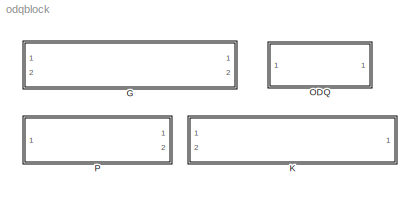
MODEL odqblock
KIND library
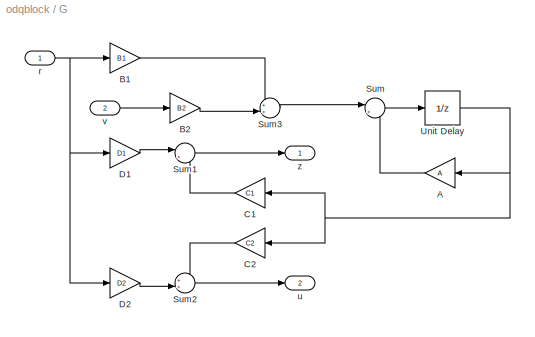
BLOCK [SubSystem] G
  FunctionWithSeparateData = off
  MaskCallbackString = ||||||||
  MaskDescription = x(k+1) = A*x(k) + B1*r(k) + B2*v(k)\n z(k)  = C1*x(k) + D1*r(k)\n u(k)  = C2*x(k) + D2*r(k)
  MaskDisplay = fprintf('%s\\n%s\\n%s',...\n    'x[k+1]=A*x[k]+B1*r[k]+B2*v[k]',...\n    'z[k]=C1*x[k]+D1*r[k]',...\n    'u[k]=C2*x[k]+D2*r[k]')\nport_label('input' ,1,'r')\nport_label('input' ,2,'v')\nport_label('output',1,'z')\nport_label('output',2,'u')\n
  MaskEnableString = on,on,on,on,on,on,on,on,on
  MaskHideContents = off
  MaskIconFrame = on
  MaskIconOpaque = on
  MaskIconRotate = none
  MaskIconUnits = autoscale
  MaskPortRotate = default
  MaskPromptString = A|B1|B2|C1|C2|D1|D2|Ts (Sampling Time)|Initial Conditions
  MaskStyleString = edit,edit,edit,edit,edit,edit,edit,edit,edit
  MaskToolTipString = on,on,on,on,on,on,on,on,on
  MaskTunableValueString = on,on,on,on,on,on,on,on,on
  MaskType = System G
  MaskValueString = 0|0|0|0|0|0|0|Ts|x0
  MaskVariables = A=@1;B1=@2;B2=@3;C1=@4;C2=@5;D1=@6;D2=@7;Ts=@8;x0=@9;
  MaskVisibilityString = on,on,on,on,on,on,on,on,on
  MinAlgLoopOccurrences = off
  Opaque = off
  Ports = [2, 2]
  PropExecContextOutsideSubsystem = off
  RTWSystemCode = Auto
  RequestExecContextInheritance = off
  SID = 1
BLOCK [Gain] G/A
  Gain = A
  Multiplication = Matrix(K*u)
  OutDataTypeStr = Inherit: Inherit via internal rule
  ParamDataTypeStr = Inherit: Inherit via internal rule
  SID = 4
  SampleTime = Ts
  SaturateOnIntegerOverflow = off
BLOCK [Gain] G/B1
  Gain = B1
  Multiplication = Matrix(K*u)
  OutDataTypeStr = Inherit: Inherit via internal rule
  ParamDataTypeStr = Inherit: Inherit via internal rule
  SID = 5
  SampleTime = Ts
  SaturateOnIntegerOverflow = off
BLOCK [Gain] G/B2
  Gain = B2
  Multiplication = Matrix(K*u)
  OutDataTypeStr = Inherit: Inherit via internal rule
  ParamDataTypeStr = Inherit: Inherit via internal rule
  SID = 6
  SampleTime = Ts
  SaturateOnIntegerOverflow = off
BLOCK [Gain] G/C1
  Gain = C1
  Multiplication = Matrix(K*u)
  OutDataTypeStr = Inherit: Inherit via internal rule
  ParamDataTypeStr = Inherit: Inherit via internal rule
  SID = 7
  SampleTime = Ts
  SaturateOnIntegerOverflow = off
BLOCK [Gain] G/C2
  Gain = C2
  Multiplication = Matrix(K*u)
  OutDataTypeStr = Inherit: Inherit via internal rule
  ParamDataTypeStr = Inherit: Inherit via internal rule
  SID = 8
  SampleTime = Ts
  SaturateOnIntegerOverflow = off
BLOCK [Gain] G/D1
  Gain = D1
  Multiplication = Matrix(K*u)
  OutDataTypeStr = Inherit: Inherit via internal rule
  ParamDataTypeStr = Inherit: Inherit via internal rule
  SID = 9
  SampleTime = Ts
  SaturateOnIntegerOverflow = off
BLOCK [Gain] G/D2
  Gain = D2
  Multiplication = Matrix(K*u)
  OutDataTypeStr = Inherit: Inherit via internal rule
  ParamDataTypeStr = Inherit: Inherit via internal rule
  SID = 10
  SampleTime = Ts
  SaturateOnIntegerOverflow = off
BLOCK [Sum] G/Sum
  IconShape = round
  InputSameDT = off
  Inputs = |++
  OutDataTypeStr = Inherit: Inherit via internal rule
  Ports = [2, 1]
  SID = 11
  SaturateOnIntegerOverflow = off
BLOCK [Sum] G/Sum1
  IconShape = round
  InputSameDT = off
  Inputs = |++
  OutDataTypeStr = Inherit: Inherit via internal rule
  Ports = [2, 1]
  SID = 12
  SaturateOnIntegerOverflow = off
BLOCK [Sum] G/Sum2
  IconShape = round
  InputSameDT = off
  Inputs = ++|
  OutDataTypeStr = Inherit: Inherit via internal rule
  Ports = [2, 1]
  SID = 13
  SaturateOnIntegerOverflow = off
BLOCK [Sum] G/Sum3
  IconShape = round
  InputSameDT = off
  Inputs = ++|
  OutDataTypeStr = Inherit: Inherit via internal rule
  Ports = [2, 1]
  SID = 14
  SaturateOnIntegerOverflow = off
BLOCK [UnitDelay] G/Unit Delay
  SID = 15
  SampleTime = Ts
  X0 = x0
BLOCK [Inport] G/r
  IconDisplay = Port number
  SID = 2
BLOCK [Outport] G/u
  IconDisplay = Port number
  Port = 2
  SID = 17
BLOCK [Inport] G/v
  IconDisplay = Port number
  Port = 2
  SID = 3
BLOCK [Outport] G/z
  IconDisplay = Port number
  SID = 16
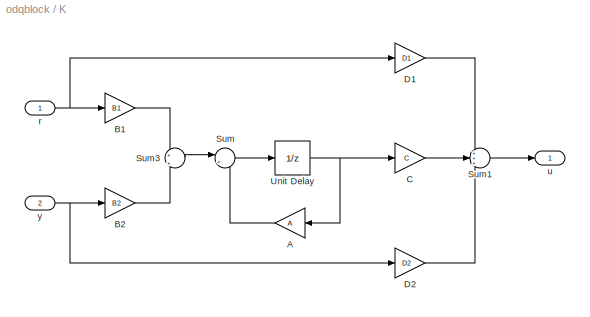
BLOCK [SubSystem] K
  FunctionWithSeparateData = off
  MaskCallbackString = |||||||
  MaskDescription = x(k+1) = A*x(k) + B1*r(k) + B2*y(k)\n u(k)  = C*x(k) + D1*r(k) + D2*y(k)
  MaskDisplay = fprintf('%s\\n%s','x[k+1]=A*x[k]+B1*r[k]+B2*y[k]',...\n    'u[k]=C*x[k]+D1*r[k]+D2*y[k]')\nport_label('input' ,1,'r')\nport_label('input' ,2,'y')\nport_label('output',1,'u')\n
  MaskEnableString = on,on,on,on,on,on,on,on
  MaskHideContents = off
  MaskIconFrame = on
  MaskIconOpaque = on
  MaskIconRotate = none
  MaskIconUnits = autoscale
  MaskPortRotate = default
  MaskPromptString = A|B1|B2|C|D1|D2|Ts (Sampling Time)|Initial Conditions
  MaskStyleString = edit,edit,edit,edit,edit,edit,edit,edit
  MaskToolTipString = on,on,on,on,on,on,on,on
  MaskTunableValueString = on,on,on,on,on,on,on,on
  MaskType = Controller K
  MaskValueString = 0|0|0|0|0|0|Ts|x0
  MaskVariables = A=@1;B1=@2;B2=@3;C=@4;D1=@5;D2=@6;Ts=@7;x0=@8;
  MaskVisibilityString = on,on,on,on,on,on,on,on
  MinAlgLoopOccurrences = off
  Opaque = off
  Ports = [2, 1]
  PropExecContextOutsideSubsystem = off
  RTWSystemCode = Auto
  RequestExecContextInheritance = off
  SID = 33
BLOCK [Gain] K/A
  Gain = A
  Multiplication = Matrix(K*u)
  OutDataTypeStr = Inherit: Inherit via internal rule
  ParamDataTypeStr = Inherit: Inherit via internal rule
  SID = 46
  SampleTime = Ts
  SaturateOnIntegerOverflow = off
BLOCK [Gain] K/B1
  Gain = B1
  Multiplication = Matrix(K*u)
  OutDataTypeStr = Inherit: Inherit via internal rule
  ParamDataTypeStr = Inherit: Inherit via internal rule
  SID = 47
  SampleTime = Ts
  SaturateOnIntegerOverflow = off
BLOCK [Gain] K/B2
  Gain = B2
  Multiplication = Matrix(K*u)
  OutDataTypeStr = Inherit: Inherit via internal rule
  ParamDataTypeStr = Inherit: Inherit via internal rule
  SID = 48
  SampleTime = Ts
  SaturateOnIntegerOverflow = off
BLOCK [Gain] K/C
  Gain = C
  Multiplication = Matrix(K*u)
  OutDataTypeStr = Inherit: Inherit via internal rule
  ParamDataTypeStr = Inherit: Inherit via internal rule
  SID = 49
  SampleTime = Ts
  SaturateOnIntegerOverflow = off
BLOCK [Gain] K/D1
  Gain = D1
  Multiplication = Matrix(K*u)
  OutDataTypeStr = Inherit: Inherit via internal rule
  ParamDataTypeStr = Inherit: Inherit via internal rule
  SID = 51
  SampleTime = Ts
  SaturateOnIntegerOverflow = off
BLOCK [Gain] K/D2
  Gain = D2
  Multiplication = Matrix(K*u)
  OutDataTypeStr = Inherit: Inherit via internal rule
  ParamDataTypeStr = Inherit: Inherit via internal rule
  SID = 52
  SampleTime = Ts
  SaturateOnIntegerOverflow = off
BLOCK [Sum] K/Sum
  IconShape = round
  InputSameDT = off
  Inputs = |++
  OutDataTypeStr = Inherit: Inherit via internal rule
  Ports = [2, 1]
  SID = 53
  SaturateOnIntegerOverflow = off
BLOCK [Sum] K/Sum1
  IconShape = round
  InputSameDT = off
  Inputs = +++
  OutDataTypeStr = Inherit: Inherit via internal rule
  Ports = [3, 1]
  SID = 54
  SaturateOnIntegerOverflow = off
BLOCK [Sum] K/Sum3
  IconShape = round
  InputSameDT = off
  Inputs = +|+
  OutDataTypeStr = Inherit: Inherit via internal rule
  Ports = [2, 1]
  SID = 56
  SaturateOnIntegerOverflow = off
BLOCK [UnitDelay] K/Unit Delay
  SID = 57
  SampleTime = Ts
  X0 = x0
BLOCK [Inport] K/r
  IconDisplay = Port number
  SID = 44
BLOCK [Outport] K/u
  IconDisplay = Port number
  SID = 58
BLOCK [Inport] K/y
  IconDisplay = Port number
  Port = 2
  SID = 45
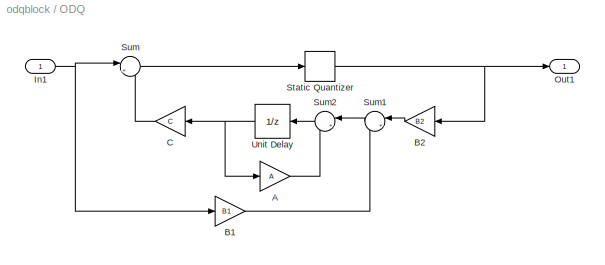
BLOCK [SubSystem] ODQ
  FunctionWithSeparateData = off
  MaskCallbackString = |||||
  MaskDescription = xi(k+1) = A*xi(k) + B1*u(k) + B2*v(k)\n  v(k)  = q*[ C*xi(k) + u(k) ]
  MaskDisplay = fprintf('%s','Optimal\\nDynamic\\nQuantizer')\nport_label('input' ,1,'u')\nport_label('output',1,'v')\n
  MaskEnableString = on,on,on,on,on,on
  MaskHelp = Please read README.TXT
  MaskHideContents = off
  MaskIconFrame = on
  MaskIconOpaque = on
  MaskIconRotate = none
  MaskIconUnits = autoscale
  MaskPortRotate = default
  MaskPromptString = A:|B1:|B2:|C:|d (Quantization Interval)|Ts (Sampling Time)
  MaskStyleString = edit,edit,edit,edit,edit,edit
  MaskToolTipString = on,on,on,on,on,on
  MaskTunableValueString = on,on,on,on,on,on
  MaskType = Opitimal Dynamic Quantizer
  MaskValueString = 0|0|0|0|d|Ts
  MaskVariables = A=@1;B1=@2;B2=@3;C=@4;d=@5;Ts=@6;
  MaskVisibilityString = on,on,on,on,on,on
  MinAlgLoopOccurrences = off
  Opaque = off
  Ports = [1, 1]
  PropExecContextOutsideSubsystem = off
  RTWSystemCode = Auto
  RequestExecContextInheritance = off
  SID = 19
BLOCK [Gain] ODQ/A
  Gain = A
  Multiplication = Matrix(K*u)
  OutDataTypeStr = Inherit: Inherit via internal rule
  ParamDataTypeStr = Inherit: Inherit via internal rule
  SID = 21
  SampleTime = Ts
  SaturateOnIntegerOverflow = off
BLOCK [Gain] ODQ/B1
  Gain = B1
  Multiplication = Matrix(K*u)
  OutDataTypeStr = Inherit: Inherit via internal rule
  ParamDataTypeStr = Inherit: Inherit via internal rule
  SID = 22
  SampleTime = Ts
  SaturateOnIntegerOverflow = off
BLOCK [Gain] ODQ/B2
  Gain = B2
  Multiplication = Matrix(K*u)
  OutDataTypeStr = Inherit: Inherit via internal rule
  ParamDataTypeStr = Inherit: Inherit via internal rule
  SID = 23
  SampleTime = Ts
  SaturateOnIntegerOverflow = off
BLOCK [Gain] ODQ/C
  Gain = C
  Multiplication = Matrix(K*u)
  OutDataTypeStr = Inherit: Inherit via internal rule
  ParamDataTypeStr = Inherit: Inherit via internal rule
  SID = 24
  SampleTime = Ts
  SaturateOnIntegerOverflow = off
BLOCK [Inport] ODQ/In1
  IconDisplay = Port number
  SID = 20
BLOCK [Outport] ODQ/Out1
  IconDisplay = Port number
  SID = 30
BLOCK [Quantizer] ODQ/Static Quantizer
  QuantizationInterval = d
  SID = 25
  SampleTime = Ts
BLOCK [Sum] ODQ/Sum
  IconShape = round
  InputSameDT = off
  Inputs = |++
  OutDataTypeStr = Inherit: Inherit via internal rule
  Ports = [2, 1]
  SID = 26
  SaturateOnIntegerOverflow = off
BLOCK [Sum] ODQ/Sum1
  IconShape = round
  InputSameDT = off
  Inputs = |++
  OutDataTypeStr = Inherit: Inherit via internal rule
  Ports = [2, 1]
  SID = 27
  SaturateOnIntegerOverflow = off
BLOCK [Sum] ODQ/Sum2
  IconShape = round
  InputSameDT = off
  Inputs = |++
  OutDataTypeStr = Inherit: Inherit via internal rule
  Ports = [2, 1]
  SID = 28
  SaturateOnIntegerOverflow = off
BLOCK [UnitDelay] ODQ/Unit Delay
  SID = 29
  SampleTime = Ts
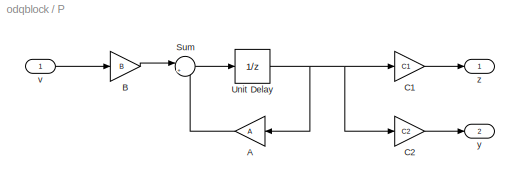
BLOCK [SubSystem] P
  FunctionWithSeparateData = off
  MaskCallbackString = |||||
  MaskDescription = x(k+1) = A*x(k) + B*v(k)\n z(k)  = C1*x(k)\n y(k)  = C2*x(k)
  MaskDisplay = fprintf('%s\\n%s\\n%s','x[k+1]=A*x[k]+B*v[k]',...\n    'z[k]=C1*x[k]',...\n    'y[k]=C2*x[k]')\nport_label('input' ,1,'v')\nport_label('output',1,'z')\nport_label('output',2,'y')\n
  MaskEnableString = on,on,on,on,on,on
  MaskHideContents = off
  MaskIconFrame = on
  MaskIconOpaque = on
  MaskIconRotate = none
  MaskIconUnits = autoscale
  MaskPortRotate = default
  MaskPromptString = A|B|C1|C2|Ts (Sampling Time)|Initial Conditions
  MaskStyleString = edit,edit,edit,edit,edit,edit
  MaskToolTipString = on,on,on,on,on,on
  MaskTunableValueString = on,on,on,on,on,on
  MaskType = Plant P
  MaskValueString = 0|0|0|0|Ts|x0
  MaskVariables = A=@1;B=@2;C1=@3;C2=@4;Ts=@5;x0=@6;
  MaskVisibilityString = on,on,on,on,on,on
  MinAlgLoopOccurrences = off
  Opaque = off
  Ports = [1, 2]
  PropExecContextOutsideSubsystem = off
  RTWSystemCode = Auto
  RequestExecContextInheritance = off
  SID = 34
BLOCK [Gain] P/A
  Gain = A
  Multiplication = Matrix(K*u)
  OutDataTypeStr = Inherit: Inherit via internal rule
  ParamDataTypeStr = Inherit: Inherit via internal rule
  SID = 36
  SampleTime = Ts
  SaturateOnIntegerOverflow = off
BLOCK [Gain] P/B
  Gain = B
  Multiplication = Matrix(K*u)
  OutDataTypeStr = Inherit: Inherit via internal rule
  ParamDataTypeStr = Inherit: Inherit via internal rule
  SID = 37
  SampleTime = Ts
  SaturateOnIntegerOverflow = off
BLOCK [Gain] P/C1
  Gain = C1
  Multiplication = Matrix(K*u)
  OutDataTypeStr = Inherit: Inherit via internal rule
  ParamDataTypeStr = Inherit: Inherit via internal rule
  SID = 38
  SampleTime = Ts
  SaturateOnIntegerOverflow = off
BLOCK [Gain] P/C2
  Gain = C2
  Multiplication = Matrix(K*u)
  OutDataTypeStr = Inherit: Inherit via internal rule
  ParamDataTypeStr = Inherit: Inherit via internal rule
  SID = 39
  SampleTime = Ts
  SaturateOnIntegerOverflow = off
BLOCK [Sum] P/Sum
  IconShape = round
  InputSameDT = off
  Inputs = |++
  OutDataTypeStr = Inherit: Inherit via internal rule
  Ports = [2, 1]
  SID = 40
  SaturateOnIntegerOverflow = off
BLOCK [UnitDelay] P/Unit Delay
  SID = 41
  SampleTime = Ts
  X0 = x0
BLOCK [Inport] P/v
  IconDisplay = Port number
  SID = 35
BLOCK [Outport] P/y
  IconDisplay = Port number
  Port = 2
  SID = 43
BLOCK [Outport] P/z
  IconDisplay = Port number
  SID = 42
LINE G/A:1 -> G/Sum:2
LINE G/B1:1 -> G/Sum3:1
LINE G/B2:1 -> G/Sum3:2
LINE G/C1:1 -> G/Sum1:2
LINE G/C2:1 -> G/Sum2:1
LINE G/D1:1 -> G/Sum1:1
LINE G/D2:1 -> G/Sum2:2
LINE G/Sum1:1 -> G/z:1
LINE G/Sum2:1 -> G/u:1
LINE G/Sum3:1 -> G/Sum:1
LINE G/Sum:1 -> G/Unit Delay:1
NET G/Unit Delay:1 -> G/A:1, G/C1:1, G/C2:1
NET G/r:1 -> G/B1:1, G/D1:1, G/D2:1
LINE G/v:1 -> G/B2:1
LINE K/A:1 -> K/Sum:2
LINE K/B1:1 -> K/Sum3:1
LINE K/B2:1 -> K/Sum3:2
LINE K/C:1 -> K/Sum1:2
LINE K/D1:1 -> K/Sum1:1
LINE K/D2:1 -> K/Sum1:3
LINE K/Sum1:1 -> K/u:1
LINE K/Sum3:1 -> K/Sum:1
LINE K/Sum:1 -> K/Unit Delay:1
NET K/Unit Delay:1 -> K/A:1, K/C:1
NET K/r:1 -> K/B1:1, K/D1:1
NET K/y:1 -> K/B2:1, K/D2:1
LINE ODQ/A:1 -> ODQ/Sum2:2
LINE ODQ/B1:1 -> ODQ/Sum1:2
LINE ODQ/B2:1 -> ODQ/Sum1:1
LINE ODQ/C:1 -> ODQ/Sum:2
NET ODQ/In1:1 -> ODQ/B1:1, ODQ/Sum:1
NET ODQ/Static Quantizer:1 -> ODQ/B2:1, ODQ/Out1:1
LINE ODQ/Sum1:1 -> ODQ/Sum2:1
LINE ODQ/Sum2:1 -> ODQ/Unit Delay:1
LINE ODQ/Sum:1 -> ODQ/Static Quantizer:1
NET ODQ/Unit Delay:1 -> ODQ/A:1, ODQ/C:1
LINE P/A:1 -> P/Sum:2
LINE P/B:1 -> P/Sum:1
LINE P/C1:1 -> P/z:1
LINE P/C2:1 -> P/y:1
LINE P/Sum:1 -> P/Unit Delay:1
NET P/Unit Delay:1 -> P/A:1, P/C1:1, P/C2:1
LINE P/v:1 -> P/B:1
note: NET lines group one-source signal fan-out (src -> all destinations, sorted); 1:1 wires keep LINE
